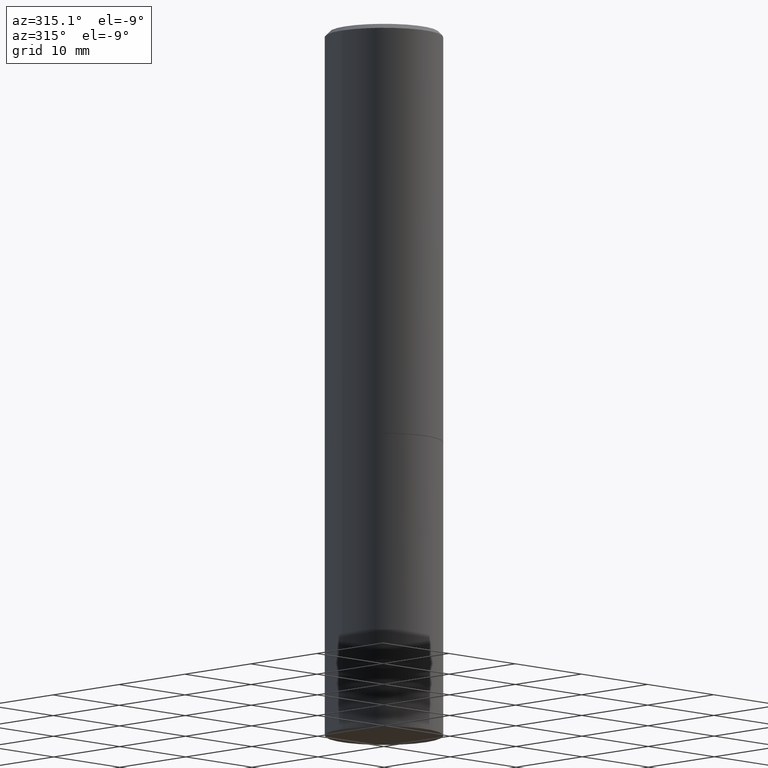
[diagram: clean part render]
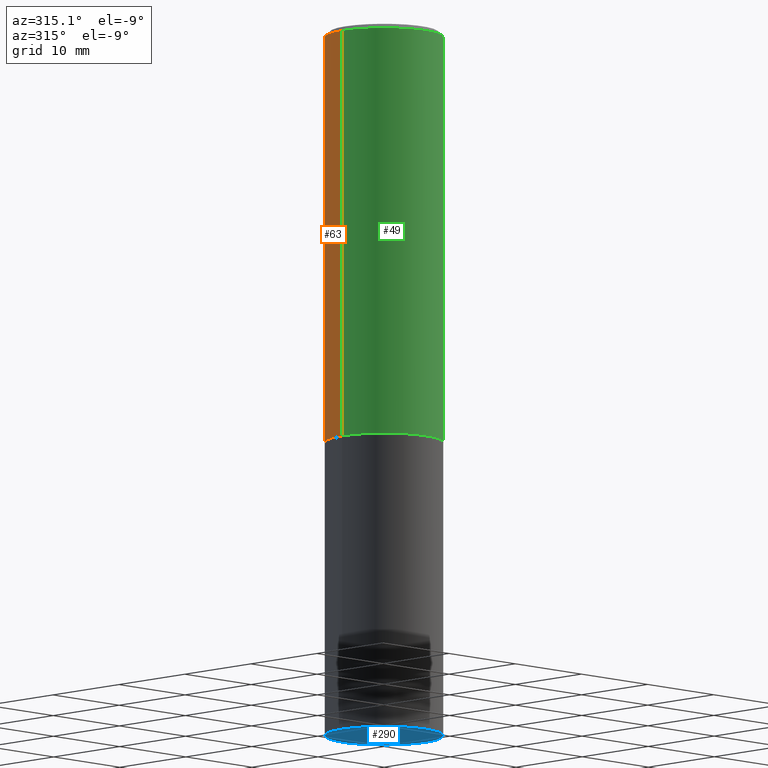
[diagram: same view with three faces highlighted in distinct colors, each labeled with its STEP entity id]
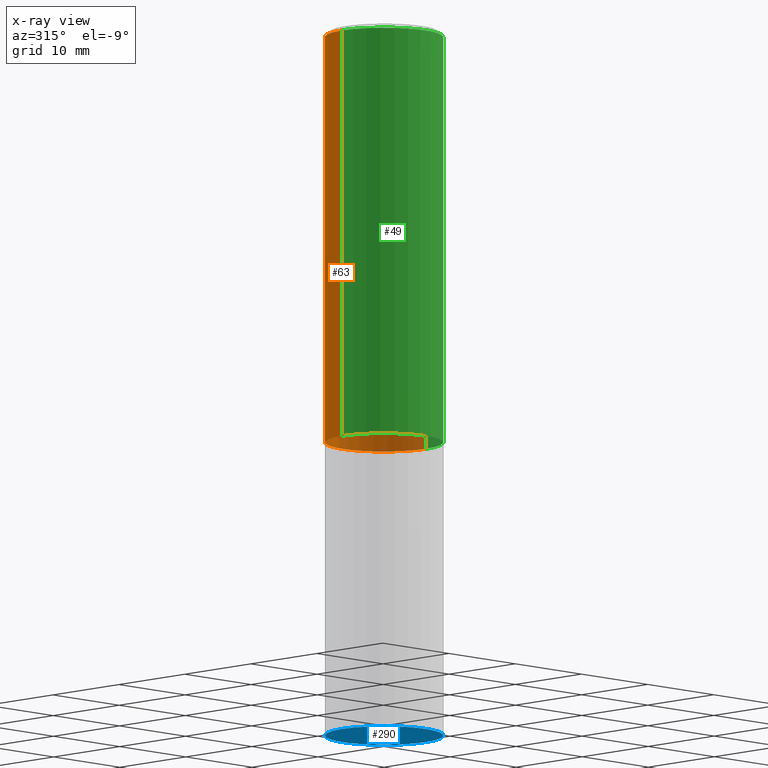
[diagram: x-ray of the same camera — body ghosted, the three highlighted faces saturated]
A machine part, auxiliary view with three faces highlighted in distinct colors.
The next image is the same camera in x-ray (body ghosted, the three faces saturated) — at least one of them is partly hidden behind the body in this view.
Their STEP definitions:

[orange] entity #63 — the highlighted cylindrical surface (partial cylindrical patch) has radius 6.35 mm, axis along (-0, 0, 1).
#6 = VECTOR ( 'NONE', #318, 39.37007874015748143 ) ;
#31 = DIRECTION ( 'NONE',  ( -2.445468806185136597E-29, 3.491481338843145583E-15, 1.000000000000000000 ) ) ;
#36 = CYLINDRICAL_SURFACE ( 'NONE', #82, 0.2499999999999998890 ) ;
#37 = CARTESIAN_POINT ( 'NONE',  ( -0.2499999999999998057, 1.675911042644702196E-15, -0.02000000000000006287 ) ) ;
#46 = AXIS2_PLACEMENT_3D ( 'NONE', #97, #241, #294 ) ;
#62 = LINE ( 'NONE', #319, #6 ) ;
#63 = ADVANCED_FACE ( 'NONE', ( #256 ), #36, .T. ) ;
#82 = AXIS2_PLACEMENT_3D ( 'NONE', #144, #31, #91 ) ;
#91 = DIRECTION ( 'NONE',  ( 1.000000000000000000, -6.982962677686266711E-15, 4.876176775795935793E-29 ) ) ;
#97 = CARTESIAN_POINT ( 'NONE',  ( 4.890937612370288923E-31, -6.982962677686312563E-17, -0.02000000000000006287 ) ) ;
#102 = DIRECTION ( 'NONE',  ( 1.000000000000000000, -6.982962677686266711E-15, 0.000000000000000000 ) ) ;
#107 = VERTEX_POINT ( 'NONE', #37 ) ;
#115 = CIRCLE ( 'NONE', #46, 0.2499999999999998057 ) ;
#138 = VERTEX_POINT ( 'NONE', #169 ) ;
#144 = CARTESIAN_POINT ( 'NONE',  ( 0.000000000000000000, 0.000000000000000000, 0.000000000000000000 ) ) ;
#148 = EDGE_CURVE ( 'NONE', #243, #138, #176, .T. ) ;
#149 = CARTESIAN_POINT ( 'NONE',  ( 4.277124942017804562E-29, -6.106600861636661664E-15, -1.749000000000000110 ) ) ;
#161 = EDGE_CURVE ( 'NONE', #261, #107, #62, .T. ) ;
#169 = CARTESIAN_POINT ( 'NONE',  ( 0.2499999999999998057, -1.784954126219744611E-15, -0.02000000000000006287 ) ) ;
#176 = LINE ( 'NONE', #289, #264 ) ;
#181 = CIRCLE ( 'NONE', #206, 0.2500000000000000000 ) ;
#206 = AXIS2_PLACEMENT_3D ( 'NONE', #149, #330, #102 ) ;
#228 = ORIENTED_EDGE ( 'NONE', *, *, #263, .T. ) ;
#233 = CARTESIAN_POINT ( 'NONE',  ( 0.2500000000000000000, -7.852341531058229130E-15, -1.749000000000000110 ) ) ;
#241 = DIRECTION ( 'NONE',  ( -2.445468806185136597E-29, 3.491481338843145583E-15, 1.000000000000000000 ) ) ;
#243 = VERTEX_POINT ( 'NONE', #233 ) ;
#256 = FACE_OUTER_BOUND ( 'NONE', #363, .T. ) ;
#261 = VERTEX_POINT ( 'NONE', #266 ) ;
#263 = EDGE_CURVE ( 'NONE', #243, #261, #181, .T. ) ;
#264 = VECTOR ( 'NONE', #346, 39.37007874015748143 ) ;
#266 = CARTESIAN_POINT ( 'NONE',  ( -0.2500000000000000000, -1.311858404806510044E-15, -1.749000000000000110 ) ) ;
#289 = CARTESIAN_POINT ( 'NONE',  ( 0.2499999999999998890, -1.745740669421565889E-15, 1.219044193948983388E-29 ) ) ;
#294 = DIRECTION ( 'NONE',  ( 1.000000000000000000, -6.982962677686266711E-15, 0.000000000000000000 ) ) ;
#309 = ORIENTED_EDGE ( 'NONE', *, *, #161, .T. ) ;
#318 = DIRECTION ( 'NONE',  ( -2.445468806185136877E-29, 3.491481338843145188E-15, 1.000000000000000000 ) ) ;
#319 = CARTESIAN_POINT ( 'NONE',  ( -0.2499999999999998890, 1.776356839400249676E-15, -1.229733772563726025E-29 ) ) ;
#322 = ORIENTED_EDGE ( 'NONE', *, *, #148, .F. ) ;
#330 = DIRECTION ( 'NONE',  ( -2.445468806185136597E-29, 3.491481338843145583E-15, 1.000000000000000000 ) ) ;
#335 = EDGE_CURVE ( 'NONE', #138, #107, #115, .T. ) ;
#346 = DIRECTION ( 'NONE',  ( -2.445468806185136877E-29, 3.491481338843145188E-15, 1.000000000000000000 ) ) ;
#363 = EDGE_LOOP ( 'NONE', ( #228, #309, #366, #322 ) ) ;
#366 = ORIENTED_EDGE ( 'NONE', *, *, #335, .F. ) ;

[blue] entity #290 — the highlighted planar face has unit normal (0, -0, -1).
#3 = EDGE_CURVE ( 'NONE', #334, #74, #238, .T. ) ;
#24 = DIRECTION ( 'NONE',  ( -2.445468806185136597E-29, 3.491481338843145583E-15, 1.000000000000000000 ) ) ;
#38 = CARTESIAN_POINT ( 'NONE',  ( 1.745740669421639647E-15, 0.2499999999999895084, -3.000000000000001332 ) ) ;
#74 = VERTEX_POINT ( 'NONE', #286 ) ;
#80 = CARTESIAN_POINT ( 'NONE',  ( 7.336406418555409790E-29, -1.047444401652943635E-14, -3.000000000000000444 ) ) ;
#88 = AXIS2_PLACEMENT_3D ( 'NONE', #80, #24, #283 ) ;
#95 = AXIS2_PLACEMENT_3D ( 'NONE', #262, #96, #326 ) ;
#96 = DIRECTION ( 'NONE',  ( -2.445468806185136597E-29, 3.491481338843145583E-15, 1.000000000000000000 ) ) ;
#99 = ORIENTED_EDGE ( 'NONE', *, *, #250, .F. ) ;
#101 = PLANE ( 'NONE',  #143 ) ;
#143 = AXIS2_PLACEMENT_3D ( 'NONE', #38, #153, #212 ) ;
#153 = DIRECTION ( 'NONE',  ( 2.438088387897960049E-29, -3.491481338843145188E-15, -1.000000000000000000 ) ) ;
#173 = ORIENTED_EDGE ( 'NONE', *, *, #3, .F. ) ;
#183 = FACE_OUTER_BOUND ( 'NONE', #349, .T. ) ;
#212 = DIRECTION ( 'NONE',  ( -1.000000000000000000, 6.982962677686265922E-15, -4.876176775795935793E-29 ) ) ;
#238 = CIRCLE ( 'NONE', #88, 0.2500000000000000000 ) ;
#250 = EDGE_CURVE ( 'NONE', #74, #334, #341, .T. ) ;
#262 = CARTESIAN_POINT ( 'NONE',  ( 7.336406418555409790E-29, -1.047444401652943635E-14, -3.000000000000000444 ) ) ;
#283 = DIRECTION ( 'NONE',  ( 1.000000000000000000, -6.982962677686262766E-15, 0.000000000000000000 ) ) ;
#286 = CARTESIAN_POINT ( 'NONE',  ( -0.2500000000000000000, -6.515911340352220442E-15, -3.000000000000000444 ) ) ;
#290 = ADVANCED_FACE ( 'NONE', ( #183 ), #101, .T. ) ;
#326 = DIRECTION ( 'NONE',  ( 1.000000000000000000, -6.982962677686262766E-15, 0.000000000000000000 ) ) ;
#334 = VERTEX_POINT ( 'NONE', #354 ) ;
#341 = CIRCLE ( 'NONE', #95, 0.2500000000000000000 ) ;
#349 = EDGE_LOOP ( 'NONE', ( #173, #99 ) ) ;
#354 = CARTESIAN_POINT ( 'NONE',  ( 0.2500000000000000000, -1.222018468595100303E-14, -3.000000000000000444 ) ) ;

[green] entity #49 — the highlighted cylindrical surface (partial cylindrical patch) has radius 6.35 mm, axis along (-0, 0, 1).
#6 = VECTOR ( 'NONE', #318, 39.37007874015748143 ) ;
#11 = CARTESIAN_POINT ( 'NONE',  ( 4.890937612370288923E-31, -6.982962677686312563E-17, -0.02000000000000006287 ) ) ;
#14 = EDGE_LOOP ( 'NONE', ( #237, #316, #320, #182 ) ) ;
#37 = CARTESIAN_POINT ( 'NONE',  ( -0.2499999999999998057, 1.675911042644702196E-15, -0.02000000000000006287 ) ) ;
#42 = CARTESIAN_POINT ( 'NONE',  ( 4.277124942017804562E-29, -6.106600861636661664E-15, -1.749000000000000110 ) ) ;
#49 = ADVANCED_FACE ( 'NONE', ( #245 ), #216, .T. ) ;
#60 = AXIS2_PLACEMENT_3D ( 'NONE', #11, #232, #313 ) ;
#62 = LINE ( 'NONE', #319, #6 ) ;
#75 = DIRECTION ( 'NONE',  ( -2.445468806185136597E-29, 3.491481338843145583E-15, 1.000000000000000000 ) ) ;
#83 = CIRCLE ( 'NONE', #351, 0.2500000000000000000 ) ;
#107 = VERTEX_POINT ( 'NONE', #37 ) ;
#109 = EDGE_CURVE ( 'NONE', #107, #138, #219, .T. ) ;
#134 = DIRECTION ( 'NONE',  ( 1.000000000000000000, -6.982962677686266711E-15, 4.876176775795935793E-29 ) ) ;
#138 = VERTEX_POINT ( 'NONE', #169 ) ;
#148 = EDGE_CURVE ( 'NONE', #243, #138, #176, .T. ) ;
#161 = EDGE_CURVE ( 'NONE', #261, #107, #62, .T. ) ;
#169 = CARTESIAN_POINT ( 'NONE',  ( 0.2499999999999998057, -1.784954126219744611E-15, -0.02000000000000006287 ) ) ;
#176 = LINE ( 'NONE', #289, #264 ) ;
#182 = ORIENTED_EDGE ( 'NONE', *, *, #109, .F. ) ;
#210 = AXIS2_PLACEMENT_3D ( 'NONE', #278, #304, #134 ) ;
#216 = CYLINDRICAL_SURFACE ( 'NONE', #210, 0.2499999999999998890 ) ;
#219 = CIRCLE ( 'NONE', #60, 0.2499999999999998057 ) ;
#232 = DIRECTION ( 'NONE',  ( -2.445468806185136597E-29, 3.491481338843145583E-15, 1.000000000000000000 ) ) ;
#233 = CARTESIAN_POINT ( 'NONE',  ( 0.2500000000000000000, -7.852341531058229130E-15, -1.749000000000000110 ) ) ;
#237 = ORIENTED_EDGE ( 'NONE', *, *, #161, .F. ) ;
#243 = VERTEX_POINT ( 'NONE', #233 ) ;
#245 = FACE_OUTER_BOUND ( 'NONE', #14, .T. ) ;
#261 = VERTEX_POINT ( 'NONE', #266 ) ;
#264 = VECTOR ( 'NONE', #346, 39.37007874015748143 ) ;
#266 = CARTESIAN_POINT ( 'NONE',  ( -0.2500000000000000000, -1.311858404806510044E-15, -1.749000000000000110 ) ) ;
#278 = CARTESIAN_POINT ( 'NONE',  ( 0.000000000000000000, 0.000000000000000000, 0.000000000000000000 ) ) ;
#289 = CARTESIAN_POINT ( 'NONE',  ( 0.2499999999999998890, -1.745740669421565889E-15, 1.219044193948983388E-29 ) ) ;
#300 = DIRECTION ( 'NONE',  ( 1.000000000000000000, -6.982962677686266711E-15, 0.000000000000000000 ) ) ;
#304 = DIRECTION ( 'NONE',  ( -2.445468806185136597E-29, 3.491481338843145583E-15, 1.000000000000000000 ) ) ;
#313 = DIRECTION ( 'NONE',  ( 1.000000000000000000, -6.982962677686266711E-15, 0.000000000000000000 ) ) ;
#316 = ORIENTED_EDGE ( 'NONE', *, *, #328, .T. ) ;
#318 = DIRECTION ( 'NONE',  ( -2.445468806185136877E-29, 3.491481338843145188E-15, 1.000000000000000000 ) ) ;
#319 = CARTESIAN_POINT ( 'NONE',  ( -0.2499999999999998890, 1.776356839400249676E-15, -1.229733772563726025E-29 ) ) ;
#320 = ORIENTED_EDGE ( 'NONE', *, *, #148, .T. ) ;
#328 = EDGE_CURVE ( 'NONE', #261, #243, #83, .T. ) ;
#346 = DIRECTION ( 'NONE',  ( -2.445468806185136877E-29, 3.491481338843145188E-15, 1.000000000000000000 ) ) ;
#351 = AXIS2_PLACEMENT_3D ( 'NONE', #42, #75, #300 ) ;